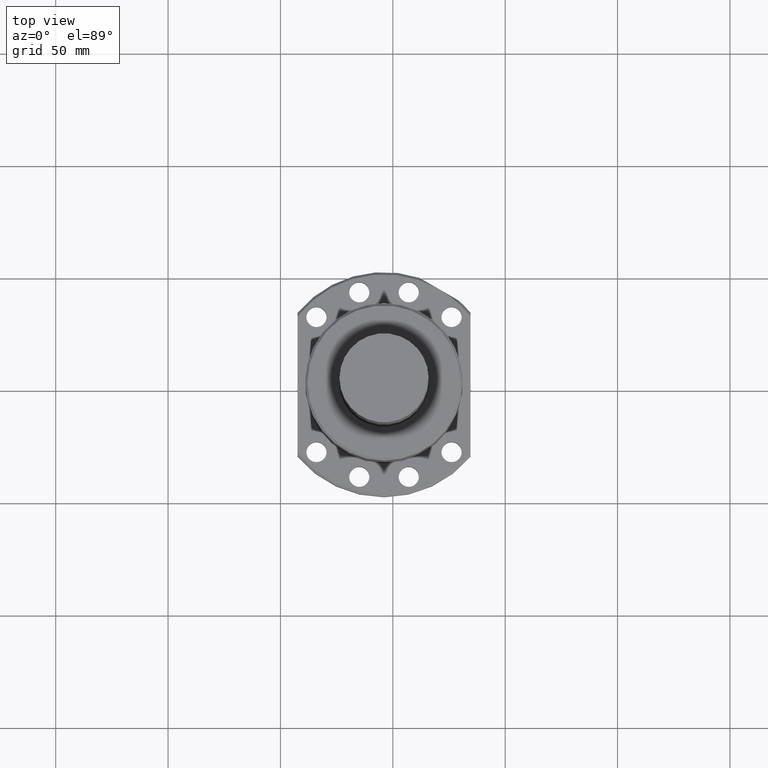
[diagram: clean part render]
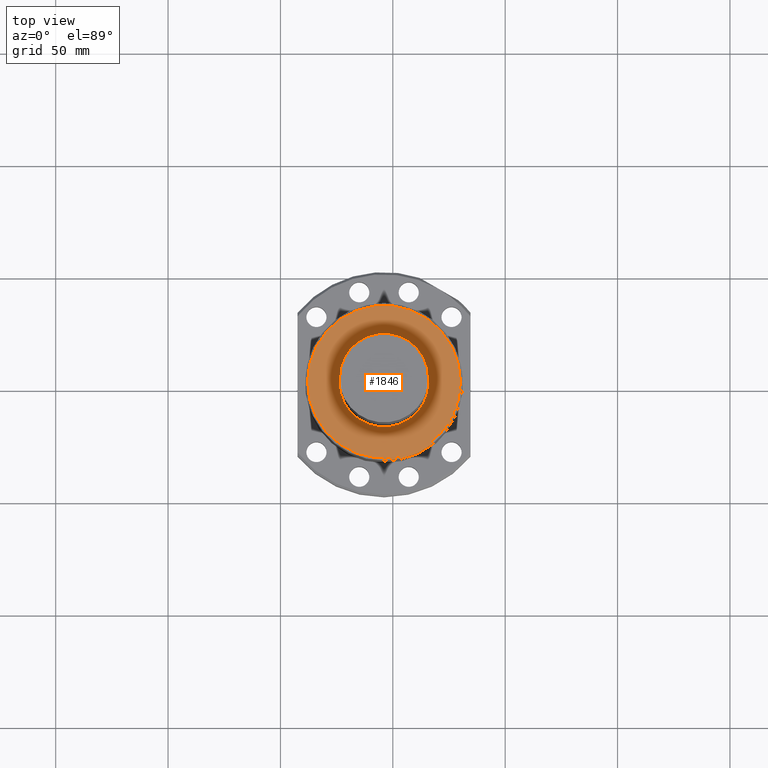
[diagram: same view with one face highlighted and labeled with its STEP entity id]
A machine part, top view. The second image highlights one B-rep face of the part: STEP entity #1846.
In plain terms, the highlighted planar face has unit normal (0, 0, -1).
Its self-contained STEP definition (entity closure, byte-faithful):
#168 = DIRECTION ( 'NONE',  ( 1.000000000000000000, 0.0000000000000000000, 0.0000000000000000000 ) ) ;
#170 = DIRECTION ( 'NONE',  ( 0.0000000000000000000, -0.0000000000000000000, 1.000000000000000000 ) ) ;
#172 = CARTESIAN_POINT ( 'NONE',  ( 0.0000000000000000000, 0.0000000000000000000, -102.0000000000000900 ) ) ;
#213 = CIRCLE ( 'NONE', #614, 33.99999999999992200 ) ;
#227 = VERTEX_POINT ( 'NONE', #1741 ) ;
#447 = DIRECTION ( 'NONE',  ( 1.000000000000000000, 0.0000000000000000000, 0.0000000000000000000 ) ) ;
#452 = DIRECTION ( 'NONE',  ( -0.0000000000000000000, -0.0000000000000000000, -1.000000000000000000 ) ) ;
#456 = EDGE_CURVE ( 'NONE', #1845, #847, #1318, .T. ) ;
#457 = CARTESIAN_POINT ( 'NONE',  ( 0.0000000000000000000, 0.0000000000000000000, -102.0000000000000100 ) ) ;
#523 = FACE_OUTER_BOUND ( 'NONE', #778, .T. ) ;
#614 = AXIS2_PLACEMENT_3D ( 'NONE', #172, #170, #168 ) ;
#654 = AXIS2_PLACEMENT_3D ( 'NONE', #1470, #1467, #1462 ) ;
#691 = DIRECTION ( 'NONE',  ( 1.000000000000000000, 0.0000000000000000000, 0.0000000000000000000 ) ) ;
#694 = DIRECTION ( 'NONE',  ( -0.0000000000000000000, -0.0000000000000000000, -1.000000000000000000 ) ) ;
#697 = CARTESIAN_POINT ( 'NONE',  ( 0.0000000000000000000, 0.0000000000000000000, -102.0000000000000100 ) ) ;
#778 = EDGE_LOOP ( 'NONE', ( #1956, #1953 ) ) ;
#847 = VERTEX_POINT ( 'NONE', #1067 ) ;
#854 = CIRCLE ( 'NONE', #1015, 20.00000000000000000 ) ;
#992 = ORIENTED_EDGE ( 'NONE', *, *, #1364, .F. ) ;
#1015 = AXIS2_PLACEMENT_3D ( 'NONE', #457, #452, #447 ) ;
#1067 = CARTESIAN_POINT ( 'NONE',  ( 33.99999999999992200, 0.0000000000000000000, -102.0000000000000900 ) ) ;
#1137 = AXIS2_PLACEMENT_3D ( 'NONE', #1909, #1900, #1897 ) ;
#1171 = EDGE_LOOP ( 'NONE', ( #992, #1918 ) ) ;
#1179 = EDGE_CURVE ( 'NONE', #227, #1959, #1746, .T. ) ;
#1318 = CIRCLE ( 'NONE', #654, 33.99999999999992200 ) ;
#1335 = AXIS2_PLACEMENT_3D ( 'NONE', #697, #694, #691 ) ;
#1350 = FACE_BOUND ( 'NONE', #1171, .T. ) ;
#1364 = EDGE_CURVE ( 'NONE', #1959, #227, #854, .T. ) ;
#1421 = CARTESIAN_POINT ( 'NONE',  ( 20.00000000000000000, 0.0000000000000000000, -102.0000000000000100 ) ) ;
#1462 = DIRECTION ( 'NONE',  ( 1.000000000000000000, 0.0000000000000000000, 0.0000000000000000000 ) ) ;
#1467 = DIRECTION ( 'NONE',  ( 0.0000000000000000000, -0.0000000000000000000, 1.000000000000000000 ) ) ;
#1470 = CARTESIAN_POINT ( 'NONE',  ( 0.0000000000000000000, 0.0000000000000000000, -102.0000000000000900 ) ) ;
#1544 = EDGE_CURVE ( 'NONE', #847, #1845, #213, .T. ) ;
#1741 = CARTESIAN_POINT ( 'NONE',  ( -20.00000000000000000, 2.449293598294706500E-015, -102.0000000000000100 ) ) ;
#1746 = CIRCLE ( 'NONE', #1335, 20.00000000000000000 ) ;
#1845 = VERTEX_POINT ( 'NONE', #1913 ) ;
#1846 = ADVANCED_FACE ( 'NONE', ( #1350, #523 ), #1919, .F. ) ;
#1897 = DIRECTION ( 'NONE',  ( 1.000000000000000000, 0.0000000000000000000, 0.0000000000000000000 ) ) ;
#1900 = DIRECTION ( 'NONE',  ( 0.0000000000000000000, 0.0000000000000000000, 1.000000000000000000 ) ) ;
#1909 = CARTESIAN_POINT ( 'NONE',  ( -34.40800000000000100, -34.40800000000000100, -102.0000000000000100 ) ) ;
#1913 = CARTESIAN_POINT ( 'NONE',  ( -33.99999999999992200, 4.225031457058364200E-015, -102.0000000000000900 ) ) ;
#1918 = ORIENTED_EDGE ( 'NONE', *, *, #1179, .F. ) ;
#1919 = PLANE ( 'NONE',  #1137 ) ;
#1953 = ORIENTED_EDGE ( 'NONE', *, *, #456, .F. ) ;
#1956 = ORIENTED_EDGE ( 'NONE', *, *, #1544, .F. ) ;
#1959 = VERTEX_POINT ( 'NONE', #1421 ) ;